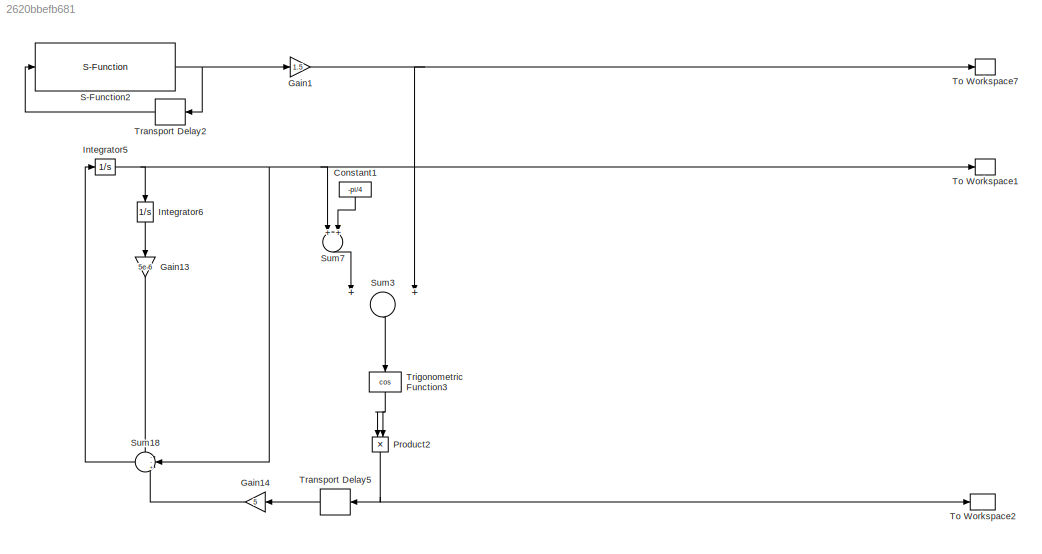
MODEL slx_2620bbefb681
KIND model
CONFIG AbsTol = auto
CONFIG EnableMultiTasking = off
CONFIG FixedStep = 1
CONFIG MaxStep = auto
CONFIG MinStep = auto
CONFIG RelTol = 1e-3
CONFIG SampleTimeConstraint = Unconstrained
CONFIG Solver = ode4
CONFIG SolverName = ode4
CONFIG StartTime = 0.0
CONFIG StopTime = 10e6
BLOCK [Constant] Constant1
  Value = -pi/4
BLOCK [Gain] Gain1
  Gain = 1.5
  OutDataTypeStr = Inherit: Inherit via internal rule
  ParamDataTypeStr = Inherit: Inherit via internal rule
  SaturateOnIntegerOverflow = off
BLOCK [Gain] Gain13
  Gain = 5e-6
  OutDataTypeStr = Inherit: Inherit via internal rule
  ParamDataTypeStr = Inherit: Inherit via internal rule
  SaturateOnIntegerOverflow = off
BLOCK [Gain] Gain14
  Gain = 5
  OutDataTypeStr = Inherit: Inherit via internal rule
  ParamDataTypeStr = Inherit: Inherit via internal rule
  SaturateOnIntegerOverflow = off
BLOCK [Integrator] Integrator5
  InitialCondition = 0.1
  Ports = [1, 1]
BLOCK [Integrator] Integrator6
  Ports = [1, 1]
BLOCK [Product] Product2
  InputSameDT = off
  OutDataTypeStr = Inherit: Inherit via internal rule
  Ports = [2, 1]
  RndMeth = Floor
  SaturateOnIntegerOverflow = off
BLOCK [S-Function] S-Function2
  EnableBusSupport = off
  FunctionName = plaintext
  Parameters = dataT,1
  Ports = [1, 1]
  SFcnIsStateOwnerBlock = off
  SFunctionDeploymentMode = off
BLOCK [Sum] Sum18
  IconShape = round
  InputSameDT = off
  Inputs = --+
  OutDataTypeStr = Inherit: Inherit via internal rule
  Ports = [3, 1]
  SaturateOnIntegerOverflow = off
BLOCK [Sum] Sum3
  InputSameDT = off
  OutDataTypeStr = Inherit: Inherit via internal rule
  Ports = [2, 1]
  SaturateOnIntegerOverflow = off
BLOCK [Sum] Sum7
  InputSameDT = off
  OutDataTypeStr = Inherit: Inherit via internal rule
  Ports = [2, 1]
  SaturateOnIntegerOverflow = off
BLOCK [ToWorkspace] To Workspace1
  FixptAsFi = on
  MaxDataPoints = inf
  Ports = [1]
  SampleTime = -1
  VariableName = x
BLOCK [ToWorkspace] To Workspace2
  MaxDataPoints = inf
  Ports = [1]
  SampleTime = -1
  VariableName = n1
BLOCK [ToWorkspace] To Workspace7
  FixptAsFi = on
  MaxDataPoints = inf
  Ports = [1]
  SampleTime = -1
  VariableName = B1
BLOCK [TransportDelay] Transport Delay2
  Ports = [1, 1]
BLOCK [TransportDelay] Transport Delay5
  BufferSize = 100000
  DelayTime = 1200
  Ports = [1, 1]
BLOCK [Trigonometry] Trigonometric Function3
  Operator = cos
  OutputSignalType = real
  Ports = [1, 1]
LINE Constant1:1 -> Sum7:2
LINE Gain13:1 -> Sum18:1
LINE Gain14:1 -> Sum18:3
NET Gain1:1 -> Sum3:2, To Workspace7:1
NET Integrator5:1 -> Integrator6:1, Sum18:2, Sum7:1, To Workspace1:1
LINE Integrator6:1 -> Gain13:1
NET Product2:1 -> To Workspace2:1, Transport Delay5:1
NET S-Function2:1 -> Gain1:1, Transport Delay2:1
LINE Sum18:1 -> Integrator5:1
LINE Sum3:1 -> Trigonometric Function3:1
LINE Sum7:1 -> Sum3:1
LINE Transport Delay2:1 -> S-Function2:1
LINE Transport Delay5:1 -> Gain14:1
NET Trigonometric Function3:1 -> Product2:1, Product2:2
note: NET lines group one-source signal fan-out (src -> all destinations, sorted); 1:1 wires keep LINE
